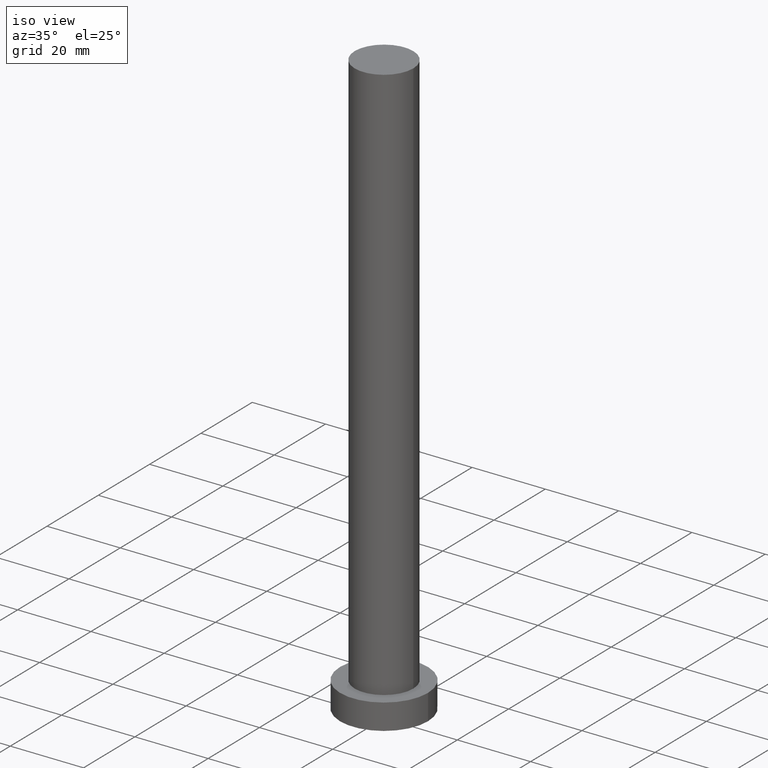
[diagram: clean part render]
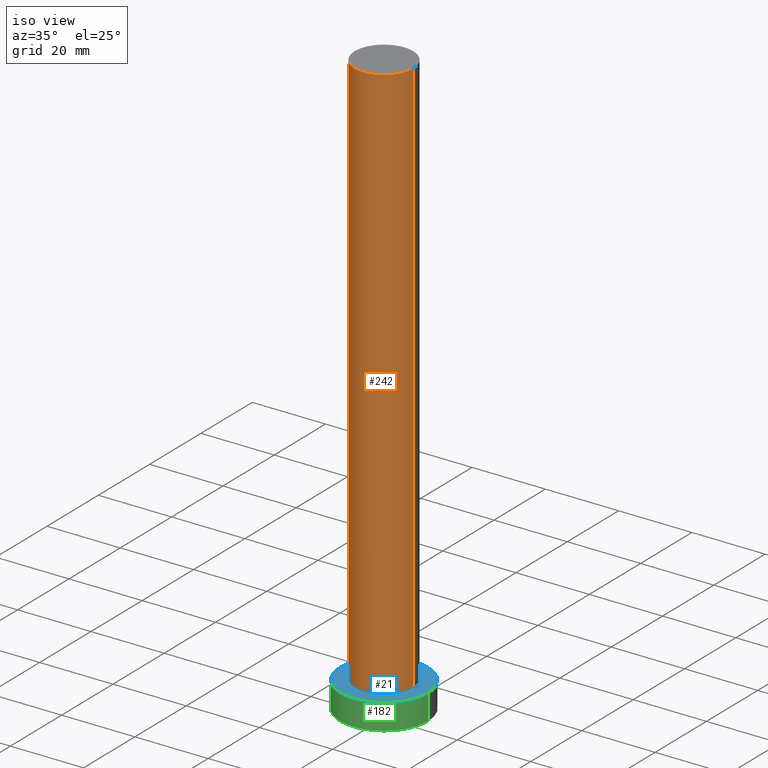
[diagram: same view with three faces highlighted in distinct colors, each labeled with its STEP entity id]
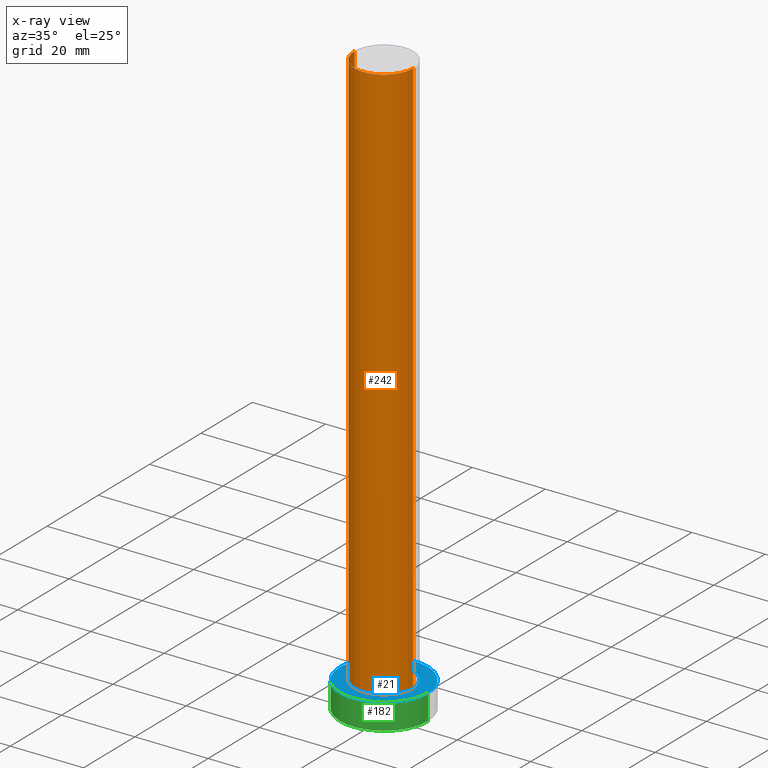
[diagram: x-ray of the same camera — body ghosted, the three highlighted faces saturated]
A machine part, iso view with three faces highlighted in distinct colors.
The next image is the same camera in x-ray (body ghosted, the three faces saturated) — at least one of them is partly hidden behind the body in this view.
Their STEP definitions:

[orange] entity #242 — the highlighted cylindrical surface (edge-blend (fillet) strip) has radius 8 mm, axis along (-0, -0, -1).
#1 = DIRECTION ( 'NONE',  ( 0.000000000000000000, 0.000000000000000000, 1.000000000000000000 ) ) ;
#23 = DIRECTION ( 'NONE',  ( -1.000000000000000000, 0.000000000000000000, 0.000000000000000000 ) ) ;
#26 = CARTESIAN_POINT ( 'NONE',  ( 0.000000000000000000, 0.000000000000000000, 160.0000000000000000 ) ) ;
#27 = EDGE_CURVE ( 'NONE', #183, #31, #48, .T. ) ;
#28 = ORIENTED_EDGE ( 'NONE', *, *, #57, .F. ) ;
#31 = VERTEX_POINT ( 'NONE', #39 ) ;
#33 = VECTOR ( 'NONE', #216, 1000.000000000000000 ) ;
#34 = CARTESIAN_POINT ( 'NONE',  ( 0.000000000000000000, 0.000000000000000000, 160.0000000000000000 ) ) ;
#39 = CARTESIAN_POINT ( 'NONE',  ( -8.000000000000000000, 0.000000000000000000, 7.000000000000000000 ) ) ;
#45 = AXIS2_PLACEMENT_3D ( 'NONE', #137, #252, #52 ) ;
#48 = LINE ( 'NONE', #78, #106 ) ;
#51 = VERTEX_POINT ( 'NONE', #77 ) ;
#52 = DIRECTION ( 'NONE',  ( 1.000000000000000000, 0.000000000000000000, 0.000000000000000000 ) ) ;
#57 = EDGE_CURVE ( 'NONE', #183, #51, #202, .T. ) ;
#77 = CARTESIAN_POINT ( 'NONE',  ( 8.000000000000000000, 9.797174393178825657E-16, 160.0000000000000000 ) ) ;
#78 = CARTESIAN_POINT ( 'NONE',  ( -8.000000000000000000, 0.000000000000000000, 160.0000000000000000 ) ) ;
#84 = EDGE_CURVE ( 'NONE', #31, #111, #162, .T. ) ;
#91 = ORIENTED_EDGE ( 'NONE', *, *, #187, .F. ) ;
#92 = AXIS2_PLACEMENT_3D ( 'NONE', #34, #1, #160 ) ;
#106 = VECTOR ( 'NONE', #120, 1000.000000000000000 ) ;
#111 = VERTEX_POINT ( 'NONE', #174 ) ;
#120 = DIRECTION ( 'NONE',  ( -0.000000000000000000, -0.000000000000000000, -1.000000000000000000 ) ) ;
#137 = CARTESIAN_POINT ( 'NONE',  ( 0.000000000000000000, 0.000000000000000000, 7.000000000000000000 ) ) ;
#138 = CYLINDRICAL_SURFACE ( 'NONE', #184, 8.000000000000000000 ) ;
#151 = EDGE_LOOP ( 'NONE', ( #91, #28, #173, #169 ) ) ;
#158 = CARTESIAN_POINT ( 'NONE',  ( -8.000000000000000000, 0.000000000000000000, 160.0000000000000000 ) ) ;
#160 = DIRECTION ( 'NONE',  ( 1.000000000000000000, 0.000000000000000000, 0.000000000000000000 ) ) ;
#162 = CIRCLE ( 'NONE', #45, 8.000000000000000000 ) ;
#167 = DIRECTION ( 'NONE',  ( -0.000000000000000000, -0.000000000000000000, -1.000000000000000000 ) ) ;
#169 = ORIENTED_EDGE ( 'NONE', *, *, #84, .T. ) ;
#173 = ORIENTED_EDGE ( 'NONE', *, *, #27, .T. ) ;
#174 = CARTESIAN_POINT ( 'NONE',  ( 8.000000000000000000, 9.797174393178825657E-16, 7.000000000000000000 ) ) ;
#183 = VERTEX_POINT ( 'NONE', #158 ) ;
#184 = AXIS2_PLACEMENT_3D ( 'NONE', #26, #167, #23 ) ;
#187 = EDGE_CURVE ( 'NONE', #51, #111, #217, .T. ) ;
#191 = CARTESIAN_POINT ( 'NONE',  ( 8.000000000000000000, 9.797174393178825657E-16, 160.0000000000000000 ) ) ;
#202 = CIRCLE ( 'NONE', #92, 8.000000000000000000 ) ;
#216 = DIRECTION ( 'NONE',  ( -0.000000000000000000, -0.000000000000000000, -1.000000000000000000 ) ) ;
#217 = LINE ( 'NONE', #191, #33 ) ;
#235 = FACE_OUTER_BOUND ( 'NONE', #151, .T. ) ;
#242 = ADVANCED_FACE ( 'NONE', ( #235 ), #138, .T. ) ;
#252 = DIRECTION ( 'NONE',  ( 0.000000000000000000, 0.000000000000000000, 1.000000000000000000 ) ) ;

[blue] entity #21 — the highlighted planar face has unit normal (0, 0, 1).
#7 = ORIENTED_EDGE ( 'NONE', *, *, #114, .T. ) ;
#11 = ORIENTED_EDGE ( 'NONE', *, *, #122, .T. ) ;
#13 = EDGE_CURVE ( 'NONE', #111, #31, #62, .T. ) ;
#15 = AXIS2_PLACEMENT_3D ( 'NONE', #168, #246, #68 ) ;
#21 = ADVANCED_FACE ( 'NONE', ( #113, #150 ), #185, .T. ) ;
#31 = VERTEX_POINT ( 'NONE', #39 ) ;
#39 = CARTESIAN_POINT ( 'NONE',  ( -8.000000000000000000, 0.000000000000000000, 7.000000000000000000 ) ) ;
#41 = AXIS2_PLACEMENT_3D ( 'NONE', #139, #215, #97 ) ;
#45 = AXIS2_PLACEMENT_3D ( 'NONE', #137, #252, #52 ) ;
#52 = DIRECTION ( 'NONE',  ( 1.000000000000000000, 0.000000000000000000, 0.000000000000000000 ) ) ;
#55 = DIRECTION ( 'NONE',  ( 1.000000000000000000, 0.000000000000000000, 0.000000000000000000 ) ) ;
#62 = CIRCLE ( 'NONE', #15, 8.000000000000000000 ) ;
#66 = DIRECTION ( 'NONE',  ( 0.000000000000000000, 0.000000000000000000, 1.000000000000000000 ) ) ;
#68 = DIRECTION ( 'NONE',  ( 1.000000000000000000, 0.000000000000000000, 0.000000000000000000 ) ) ;
#79 = CIRCLE ( 'NONE', #41, 12.00000000000000178 ) ;
#84 = EDGE_CURVE ( 'NONE', #31, #111, #162, .T. ) ;
#89 = ORIENTED_EDGE ( 'NONE', *, *, #13, .F. ) ;
#97 = DIRECTION ( 'NONE',  ( 1.000000000000000000, 0.000000000000000000, 0.000000000000000000 ) ) ;
#98 = DIRECTION ( 'NONE',  ( 0.000000000000000000, 0.000000000000000000, 1.000000000000000000 ) ) ;
#110 = EDGE_LOOP ( 'NONE', ( #206, #89 ) ) ;
#111 = VERTEX_POINT ( 'NONE', #174 ) ;
#113 = FACE_BOUND ( 'NONE', #110, .T. ) ;
#114 = EDGE_CURVE ( 'NONE', #225, #153, #79, .T. ) ;
#115 = EDGE_LOOP ( 'NONE', ( #11, #7 ) ) ;
#117 = AXIS2_PLACEMENT_3D ( 'NONE', #254, #98, #55 ) ;
#122 = EDGE_CURVE ( 'NONE', #153, #225, #224, .T. ) ;
#137 = CARTESIAN_POINT ( 'NONE',  ( 0.000000000000000000, 0.000000000000000000, 7.000000000000000000 ) ) ;
#139 = CARTESIAN_POINT ( 'NONE',  ( 0.000000000000000000, 0.000000000000000000, 7.000000000000000000 ) ) ;
#148 = DIRECTION ( 'NONE',  ( 1.000000000000000000, 0.000000000000000000, -0.000000000000000000 ) ) ;
#150 = FACE_OUTER_BOUND ( 'NONE', #115, .T. ) ;
#153 = VERTEX_POINT ( 'NONE', #177 ) ;
#162 = CIRCLE ( 'NONE', #45, 8.000000000000000000 ) ;
#168 = CARTESIAN_POINT ( 'NONE',  ( 0.000000000000000000, 0.000000000000000000, 7.000000000000000000 ) ) ;
#174 = CARTESIAN_POINT ( 'NONE',  ( 8.000000000000000000, 9.797174393178825657E-16, 7.000000000000000000 ) ) ;
#177 = CARTESIAN_POINT ( 'NONE',  ( -12.00000000000000178, 0.000000000000000000, 7.000000000000000000 ) ) ;
#185 = PLANE ( 'NONE',  #207 ) ;
#186 = CARTESIAN_POINT ( 'NONE',  ( 0.000000000000000000, 0.000000000000000000, 7.000000000000000000 ) ) ;
#206 = ORIENTED_EDGE ( 'NONE', *, *, #84, .F. ) ;
#207 = AXIS2_PLACEMENT_3D ( 'NONE', #186, #66, #148 ) ;
#215 = DIRECTION ( 'NONE',  ( 0.000000000000000000, 0.000000000000000000, 1.000000000000000000 ) ) ;
#224 = CIRCLE ( 'NONE', #117, 12.00000000000000178 ) ;
#225 = VERTEX_POINT ( 'NONE', #232 ) ;
#232 = CARTESIAN_POINT ( 'NONE',  ( 12.00000000000000178, 1.469576158976824144E-15, 7.000000000000000000 ) ) ;
#246 = DIRECTION ( 'NONE',  ( 0.000000000000000000, 0.000000000000000000, 1.000000000000000000 ) ) ;
#252 = DIRECTION ( 'NONE',  ( 0.000000000000000000, 0.000000000000000000, 1.000000000000000000 ) ) ;
#254 = CARTESIAN_POINT ( 'NONE',  ( 0.000000000000000000, 0.000000000000000000, 7.000000000000000000 ) ) ;

[green] entity #182 — the highlighted cylindrical surface (partial cylindrical patch) has radius 12 mm, axis along (-0, -0, -1).
#10 = AXIS2_PLACEMENT_3D ( 'NONE', #32, #116, #178 ) ;
#12 = EDGE_CURVE ( 'NONE', #229, #132, #59, .T. ) ;
#17 = LINE ( 'NONE', #140, #194 ) ;
#29 = ORIENTED_EDGE ( 'NONE', *, *, #122, .F. ) ;
#30 = DIRECTION ( 'NONE',  ( 1.000000000000000000, 0.000000000000000000, 0.000000000000000000 ) ) ;
#32 = CARTESIAN_POINT ( 'NONE',  ( 0.000000000000000000, 0.000000000000000000, 7.000000000000000000 ) ) ;
#47 = ORIENTED_EDGE ( 'NONE', *, *, #222, .F. ) ;
#55 = DIRECTION ( 'NONE',  ( 1.000000000000000000, 0.000000000000000000, 0.000000000000000000 ) ) ;
#59 = CIRCLE ( 'NONE', #244, 12.00000000000000178 ) ;
#76 = DIRECTION ( 'NONE',  ( -0.000000000000000000, -0.000000000000000000, -1.000000000000000000 ) ) ;
#93 = CARTESIAN_POINT ( 'NONE',  ( 12.00000000000000178, 1.469576158976824144E-15, 7.000000000000000000 ) ) ;
#98 = DIRECTION ( 'NONE',  ( 0.000000000000000000, 0.000000000000000000, 1.000000000000000000 ) ) ;
#116 = DIRECTION ( 'NONE',  ( -0.000000000000000000, -0.000000000000000000, -1.000000000000000000 ) ) ;
#117 = AXIS2_PLACEMENT_3D ( 'NONE', #254, #98, #55 ) ;
#122 = EDGE_CURVE ( 'NONE', #153, #225, #224, .T. ) ;
#132 = VERTEX_POINT ( 'NONE', #253 ) ;
#134 = ORIENTED_EDGE ( 'NONE', *, *, #12, .T. ) ;
#135 = ORIENTED_EDGE ( 'NONE', *, *, #211, .T. ) ;
#140 = CARTESIAN_POINT ( 'NONE',  ( -12.00000000000000178, 0.000000000000000000, 7.000000000000000000 ) ) ;
#153 = VERTEX_POINT ( 'NONE', #177 ) ;
#156 = VECTOR ( 'NONE', #76, 1000.000000000000000 ) ;
#175 = LINE ( 'NONE', #93, #156 ) ;
#177 = CARTESIAN_POINT ( 'NONE',  ( -12.00000000000000178, 0.000000000000000000, 7.000000000000000000 ) ) ;
#178 = DIRECTION ( 'NONE',  ( -1.000000000000000000, 0.000000000000000000, 0.000000000000000000 ) ) ;
#182 = ADVANCED_FACE ( 'NONE', ( #190 ), #212, .T. ) ;
#190 = FACE_OUTER_BOUND ( 'NONE', #251, .T. ) ;
#194 = VECTOR ( 'NONE', #195, 1000.000000000000000 ) ;
#195 = DIRECTION ( 'NONE',  ( -0.000000000000000000, -0.000000000000000000, -1.000000000000000000 ) ) ;
#210 = DIRECTION ( 'NONE',  ( 0.000000000000000000, 0.000000000000000000, 1.000000000000000000 ) ) ;
#211 = EDGE_CURVE ( 'NONE', #153, #229, #17, .T. ) ;
#212 = CYLINDRICAL_SURFACE ( 'NONE', #10, 12.00000000000000178 ) ;
#214 = CARTESIAN_POINT ( 'NONE',  ( -12.00000000000000178, 0.000000000000000000, 0.000000000000000000 ) ) ;
#222 = EDGE_CURVE ( 'NONE', #225, #132, #175, .T. ) ;
#224 = CIRCLE ( 'NONE', #117, 12.00000000000000178 ) ;
#225 = VERTEX_POINT ( 'NONE', #232 ) ;
#227 = CARTESIAN_POINT ( 'NONE',  ( 0.000000000000000000, 0.000000000000000000, 0.000000000000000000 ) ) ;
#229 = VERTEX_POINT ( 'NONE', #214 ) ;
#232 = CARTESIAN_POINT ( 'NONE',  ( 12.00000000000000178, 1.469576158976824144E-15, 7.000000000000000000 ) ) ;
#244 = AXIS2_PLACEMENT_3D ( 'NONE', #227, #210, #30 ) ;
#251 = EDGE_LOOP ( 'NONE', ( #47, #29, #135, #134 ) ) ;
#253 = CARTESIAN_POINT ( 'NONE',  ( 12.00000000000000178, 1.469576158976824144E-15, 0.000000000000000000 ) ) ;
#254 = CARTESIAN_POINT ( 'NONE',  ( 0.000000000000000000, 0.000000000000000000, 7.000000000000000000 ) ) ;